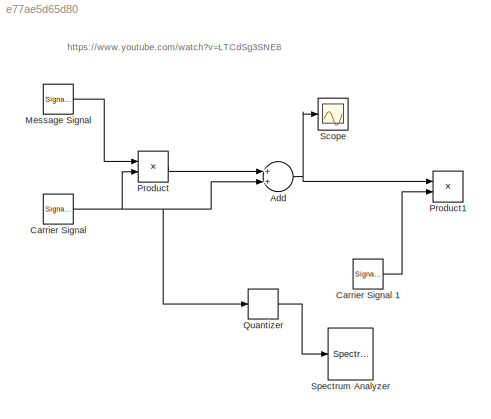
MODEL slx_e77ae5d65d80
KIND model
BLOCK [Sum] Add
  InputSameDT = off
  OutDataTypeStr = Inherit: Inherit via internal rule
  Ports = [2, 1]
  SaturateOnIntegerOverflow = off
BLOCK [SignalGenerator] Carrier Signal 
  Frequency = 1500
  Ports = [0, 1]
  Units = rad/sec
BLOCK [SignalGenerator] Carrier Signal 1
  Frequency = 1500
  Ports = [0, 1]
  Units = rad/sec
BLOCK [SignalGenerator] Message Signal 
  Amplitude = .7
  Frequency = 200
  Ports = [0, 1]
  Units = rad/sec
BLOCK [Product] Product
  InputSameDT = off
  OutDataTypeStr = Inherit: Inherit via internal rule
  Ports = [2, 1]
  RndMeth = Floor
  SaturateOnIntegerOverflow = off
BLOCK [Product] Product1
  InputSameDT = off
  OutDataTypeStr = Inherit: Inherit via internal rule
  Ports = [2, 1]
  RndMeth = Floor
  SaturateOnIntegerOverflow = off
BLOCK [Quantizer] Quantizer
  SampleTime = .001
BLOCK [Scope] Scope
  Floating = off
  NumInputPorts = 1
  Ports = [1]
  ShowLegends = off
BLOCK [SpectrumAnalyzer] Spectrum Analyzer
  Ports = [1]
  ScopeSpecificationString = spbscopes.SpectrumAnalyzerBlockCfg('CurrentConfiguration', extmgr.ConfigurationSet(extmgr.Configuration('Core','General UI',true),extmgr.Configuration('Core','Source UI',true),extmgr.Configuration('Sources','WiredSimulink',true),extmgr.Configuration('Visuals','Spectrum',true,'AxesProperties',struct('Color',[0 0 0],'XColor',[0.686274509803922 0.686274509803922 0.686274509803922],'YColor',[0.6862745...<+6661ch>
ANNOTATION (root): https://www.youtube.com/watch?v=LTCdSg3SNE8
NET Add:1 -> Product1:1, Scope:1
LINE Carrier Signal 1:1 -> Product1:2
NET Carrier Signal :1 -> Add:2, Product:2, Quantizer:1
LINE Message Signal :1 -> Product:1
LINE Product:1 -> Add:1
LINE Quantizer:1 -> Spectrum Analyzer:1
note: NET lines group one-source signal fan-out (src -> all destinations, sorted); 1:1 wires keep LINE
